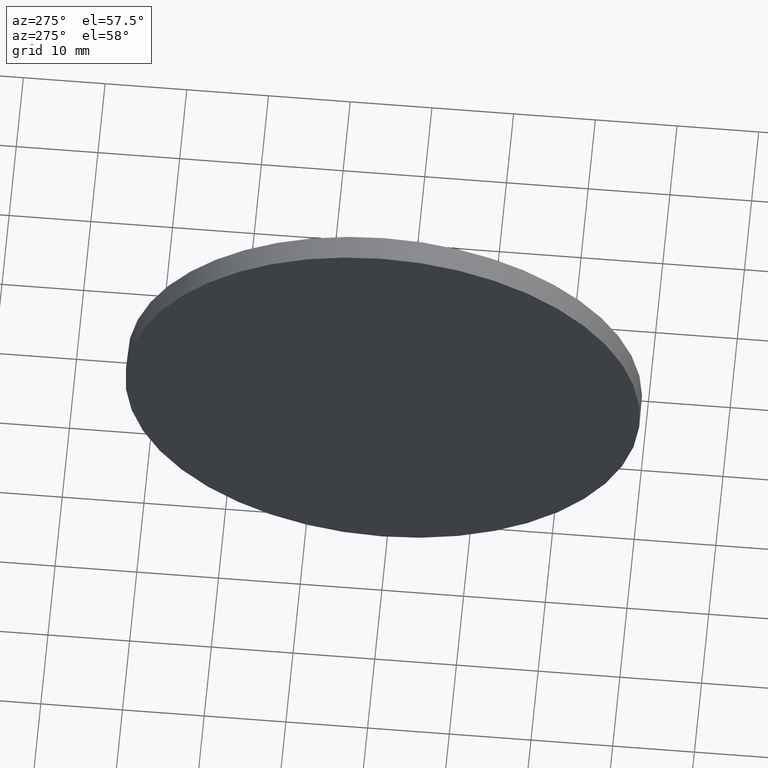
[diagram: clean part render]
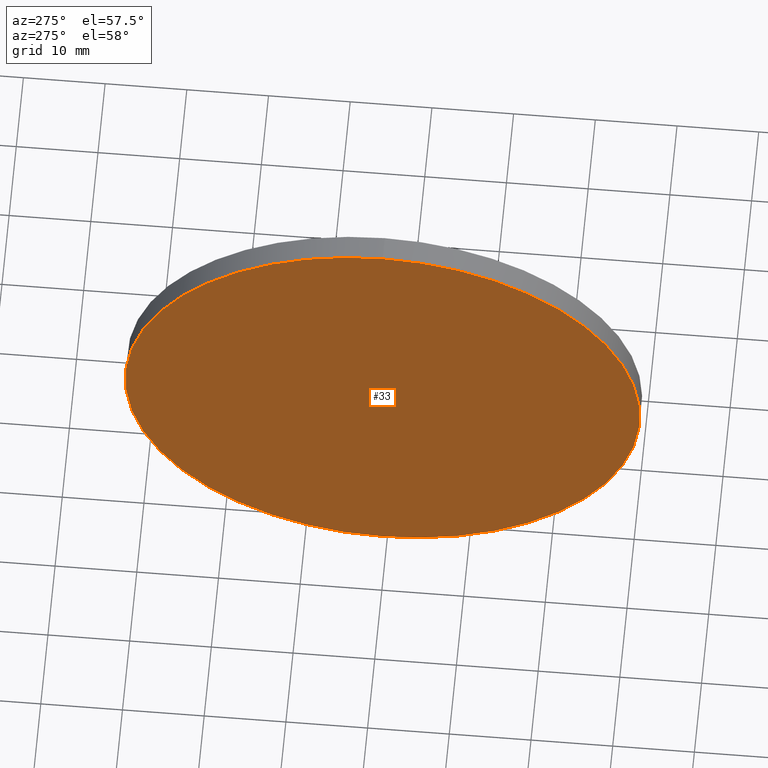
[diagram: same view with one face highlighted and labeled with its STEP entity id]
A machine part, auxiliary view. The second image highlights one B-rep face of the part: STEP entity #33.
In plain terms, the highlighted planar face has unit normal (1, 0, 0).
Its self-contained STEP definition (entity closure, byte-faithful):
#1 = CARTESIAN_POINT ( 'NONE',  ( 226.8933010013870400, 130.5185814569561000, 0.0000000000000000000 ) ) ;
#2 = EDGE_CURVE ( 'NONE', #35, #17, #63, .T. ) ;
#17 = VERTEX_POINT ( 'NONE', #80 ) ;
#26 = DIRECTION ( 'NONE',  ( -1.000000000000000000, -0.0000000000000000000, -0.0000000000000000000 ) ) ;
#30 = CARTESIAN_POINT ( 'NONE',  ( 226.8933010013870400, 130.5185814569561000, 0.0000000000000000000 ) ) ;
#33 = ADVANCED_FACE ( 'NONE', ( #184 ), #72, .F. ) ;
#35 = VERTEX_POINT ( 'NONE', #61 ) ;
#38 = ORIENTED_EDGE ( 'NONE', *, *, #2, .T. ) ;
#59 = CARTESIAN_POINT ( 'NONE',  ( 226.8933010013870400, 130.5185814569561000, 0.0000000000000000000 ) ) ;
#61 = CARTESIAN_POINT ( 'NONE',  ( 226.8933010013870400, 130.5185814569561000, -31.50000000000000000 ) ) ;
#63 = CIRCLE ( 'NONE', #71, 31.50000000000000000 ) ;
#71 = AXIS2_PLACEMENT_3D ( 'NONE', #59, #26, #90 ) ;
#72 = PLANE ( 'NONE',  #152 ) ;
#75 = DIRECTION ( 'NONE',  ( 0.0000000000000000000, 0.0000000000000000000, 1.000000000000000000 ) ) ;
#80 = CARTESIAN_POINT ( 'NONE',  ( 226.8933010013870400, 130.5185814569561000, 31.50000000000000000 ) ) ;
#90 = DIRECTION ( 'NONE',  ( 0.0000000000000000000, 0.0000000000000000000, 1.000000000000000000 ) ) ;
#110 = DIRECTION ( 'NONE',  ( 0.0000000000000000000, 0.0000000000000000000, -1.000000000000000000 ) ) ;
#111 = EDGE_LOOP ( 'NONE', ( #178, #38 ) ) ;
#124 = AXIS2_PLACEMENT_3D ( 'NONE', #30, #125, #75 ) ;
#125 = DIRECTION ( 'NONE',  ( -1.000000000000000000, -0.0000000000000000000, -0.0000000000000000000 ) ) ;
#139 = DIRECTION ( 'NONE',  ( 1.000000000000000000, 0.0000000000000000000, 0.0000000000000000000 ) ) ;
#142 = CIRCLE ( 'NONE', #124, 31.50000000000000000 ) ;
#144 = EDGE_CURVE ( 'NONE', #17, #35, #142, .T. ) ;
#152 = AXIS2_PLACEMENT_3D ( 'NONE', #1, #139, #110 ) ;
#178 = ORIENTED_EDGE ( 'NONE', *, *, #144, .T. ) ;
#184 = FACE_OUTER_BOUND ( 'NONE', #111, .T. ) ;